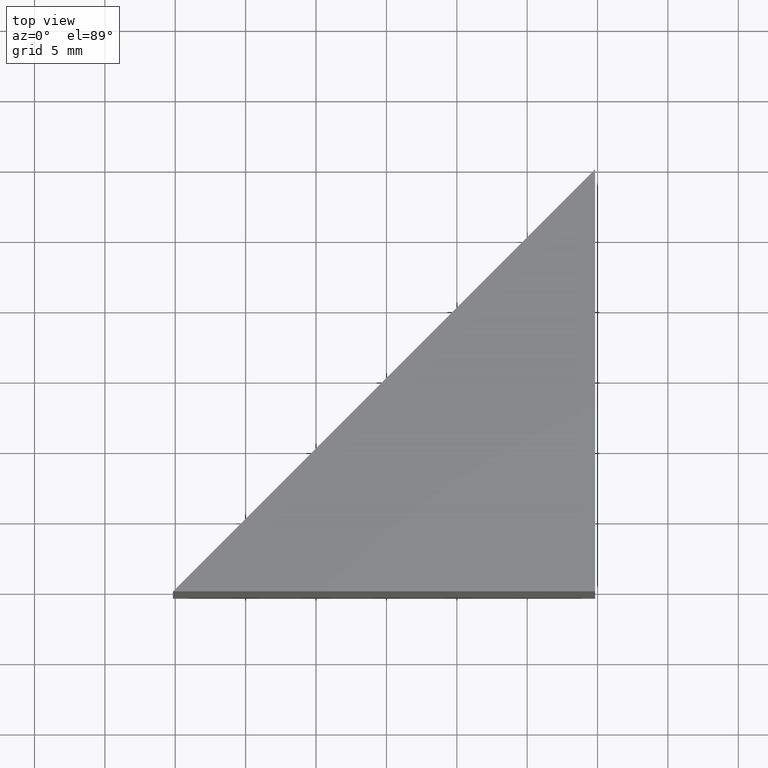
[diagram: clean part render]
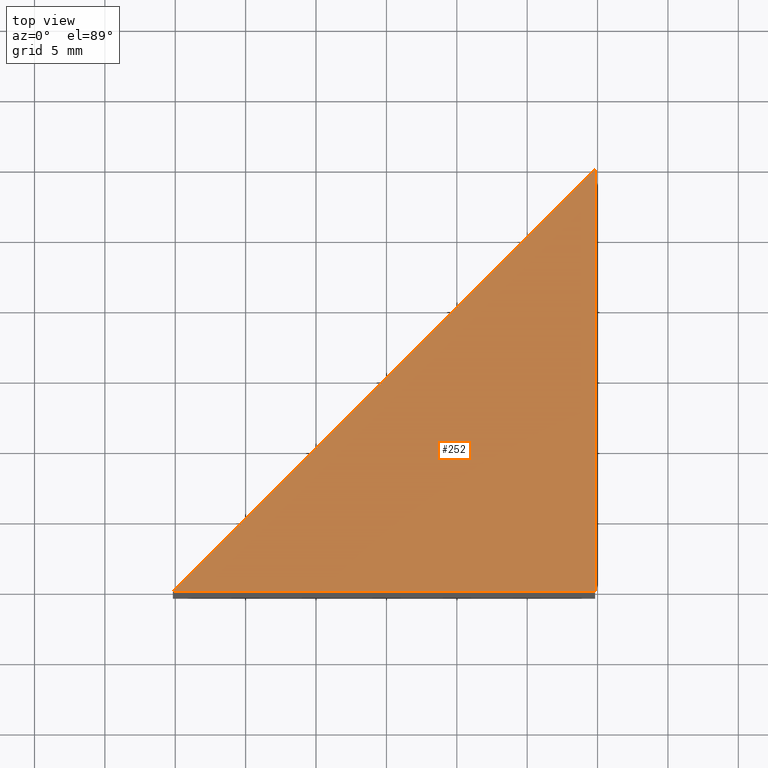
[diagram: same view with one face highlighted and labeled with its STEP entity id]
A machine part, top view. The second image highlights one B-rep face of the part: STEP entity #252.
In plain terms, the highlighted planar face has unit normal (0, 0, -1).
Its self-contained STEP definition (entity closure, byte-faithful):
#5 = VECTOR ( 'NONE', #162, 1000.000000000000100 ) ;
#10 = CARTESIAN_POINT ( 'NONE',  ( 0.0000000000000000000, 0.0000000000000000000, 30.00000000000000000 ) ) ;
#16 = EDGE_CURVE ( 'NONE', #257, #59, #186, .T. ) ;
#30 = PLANE ( 'NONE',  #247 ) ;
#31 = VERTEX_POINT ( 'NONE', #160 ) ;
#33 = CARTESIAN_POINT ( 'NONE',  ( 104.8284382265434300, 79.66744214418361000, 30.00000000000000000 ) ) ;
#47 = ORIENTED_EDGE ( 'NONE', *, *, #69, .T. ) ;
#55 = DIRECTION ( 'NONE',  ( 1.000000000000000000, -0.0000000000000000000, -0.0000000000000000000 ) ) ;
#59 = VERTEX_POINT ( 'NONE', #245 ) ;
#67 = VECTOR ( 'NONE', #180, 1000.000000000000000 ) ;
#69 = EDGE_CURVE ( 'NONE', #31, #257, #226, .T. ) ;
#77 = CARTESIAN_POINT ( 'NONE',  ( 74.82843822654344000, 79.66744214418361000, 30.00000000000000000 ) ) ;
#104 = DIRECTION ( 'NONE',  ( 0.0000000000000000000, 0.0000000000000000000, -1.000000000000000000 ) ) ;
#120 = ORIENTED_EDGE ( 'NONE', *, *, #128, .T. ) ;
#128 = EDGE_CURVE ( 'NONE', #59, #31, #134, .T. ) ;
#134 = LINE ( 'NONE', #33, #272 ) ;
#147 = DIRECTION ( 'NONE',  ( -1.000000000000000000, 0.0000000000000000000, -0.0000000000000000000 ) ) ;
#149 = ORIENTED_EDGE ( 'NONE', *, *, #16, .T. ) ;
#160 = CARTESIAN_POINT ( 'NONE',  ( 104.8284382265434300, 79.66744214418361000, 30.00000000000000000 ) ) ;
#162 = DIRECTION ( 'NONE',  ( -0.7071067811865474600, -0.7071067811865474600, -0.0000000000000000000 ) ) ;
#164 = EDGE_LOOP ( 'NONE', ( #120, #47, #149 ) ) ;
#180 = DIRECTION ( 'NONE',  ( 0.0000000000000000000, 1.000000000000000000, 0.0000000000000000000 ) ) ;
#186 = LINE ( 'NONE', #77, #5 ) ;
#199 = CARTESIAN_POINT ( 'NONE',  ( 104.8284382265434300, 109.6674421441836100, 30.00000000000000000 ) ) ;
#218 = FACE_OUTER_BOUND ( 'NONE', #164, .T. ) ;
#226 = LINE ( 'NONE', #270, #67 ) ;
#245 = CARTESIAN_POINT ( 'NONE',  ( 74.82843822654344000, 79.66744214418361000, 30.00000000000000000 ) ) ;
#247 = AXIS2_PLACEMENT_3D ( 'NONE', #10, #104, #147 ) ;
#252 = ADVANCED_FACE ( 'NONE', ( #218 ), #30, .F. ) ;
#257 = VERTEX_POINT ( 'NONE', #199 ) ;
#270 = CARTESIAN_POINT ( 'NONE',  ( 104.8284382265434300, 79.66744214418361000, 30.00000000000000000 ) ) ;
#272 = VECTOR ( 'NONE', #55, 1000.000000000000000 ) ;